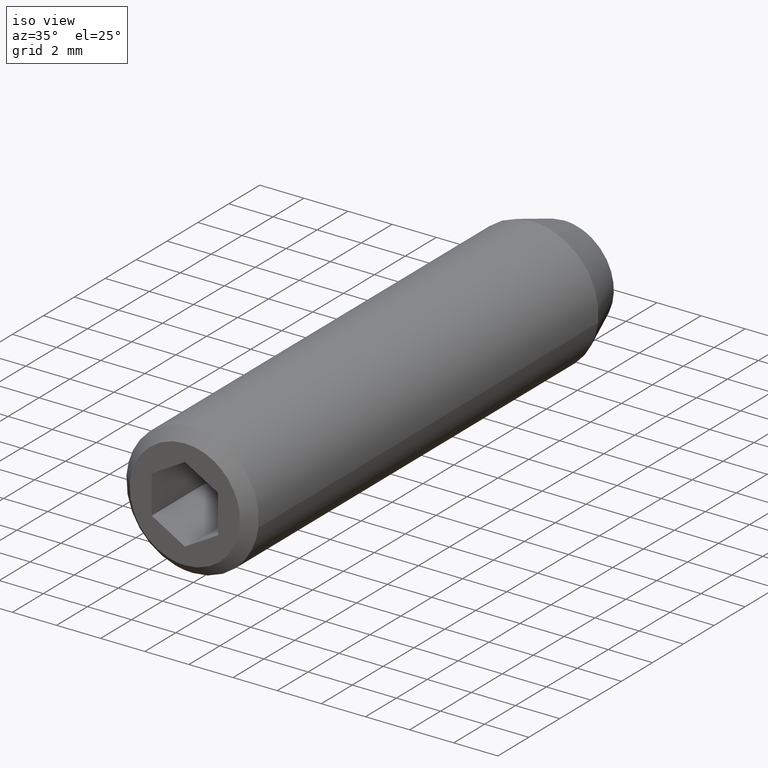
[diagram: clean part render]
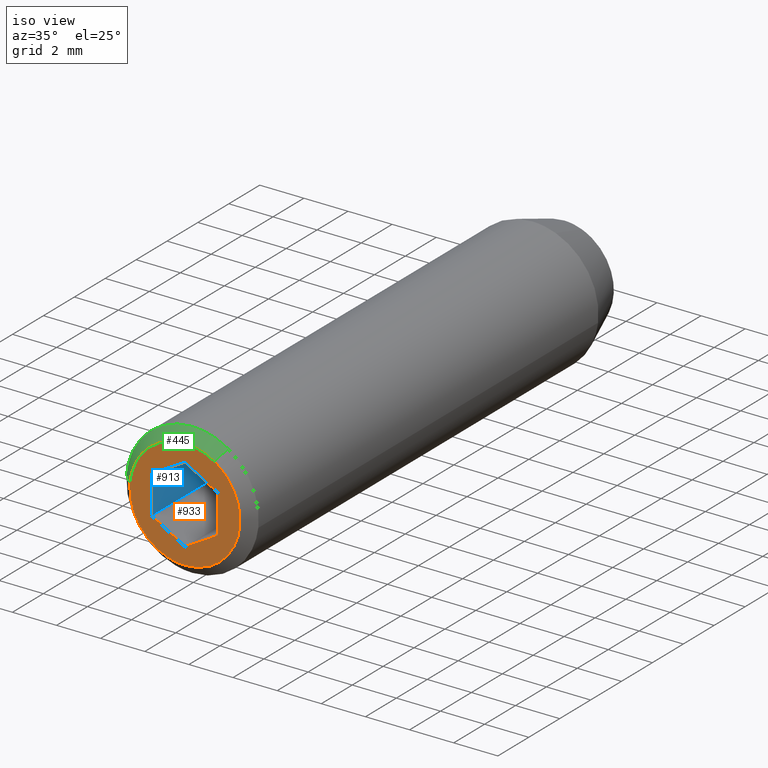
[diagram: same view with three faces highlighted in distinct colors, each labeled with its STEP entity id]
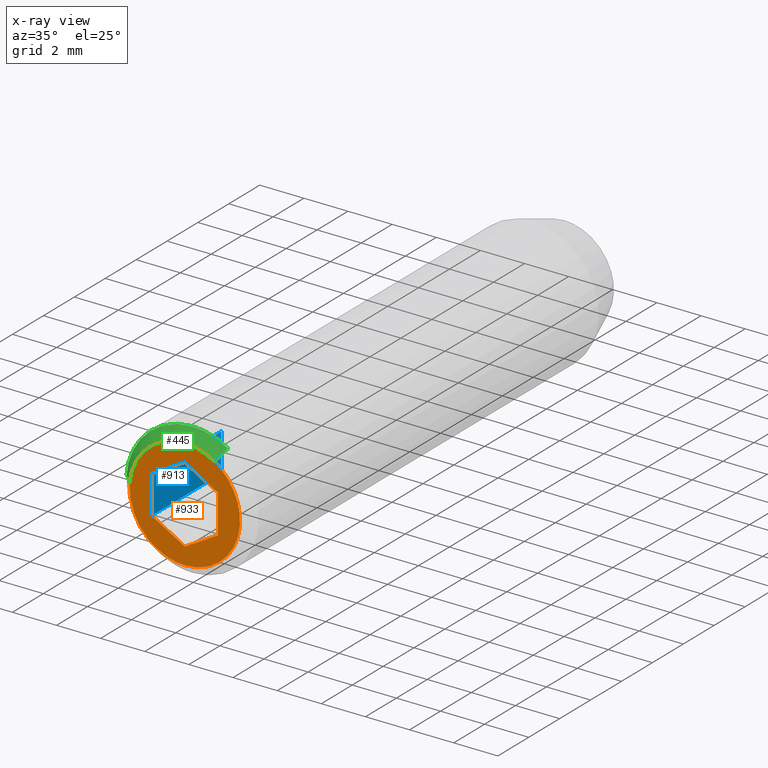
[diagram: x-ray of the same camera — body ghosted, the three highlighted faces saturated]
A machine part, iso view with three faces highlighted in distinct colors.
The next image is the same camera in x-ray (body ghosted, the three faces saturated) — at least one of them is partly hidden behind the body in this view.
Their STEP definitions:

[orange] entity #933 — the highlighted face is a freeform B-spline surface patch.
#271=CARTESIAN_POINT('',(1.344626983622767,-24.549999999999550,2.107600122156899));
#272=VERTEX_POINT('',#271);
#278=CARTESIAN_POINT('',(0.0,-24.550000000000001,-2.500000000000001));
#279=VERTEX_POINT('',#278);
#280=CARTESIAN_POINT('',(0.0,-24.550000000000001,-2.500000000000001));
#281=CARTESIAN_POINT('',(2.500000000000000,-24.549999999999997,-2.500000000000001));
#282=CARTESIAN_POINT('',(2.500000000000000,-24.550000000000001,-6.765950E-016));
#283=CARTESIAN_POINT('',(2.500000000000001,-24.549999999999997,1.370484140025952));
#284=CARTESIAN_POINT('',(1.344626983622767,-24.549999999999553,2.107600122156898));
#292=(BOUNDED_CURVE()B_SPLINE_CURVE(2,(#280,#281,#282,#283,#284),.UNSPECIFIED.,.F.,.U.)B_SPLINE_CURVE_WITH_KNOTS((3,2,3),(0.0,0.250000000000000,0.407950112626553),.UNSPECIFIED.)CURVE()GEOMETRIC_REPRESENTATION_ITEM()RATIONAL_B_SPLINE_CURVE((1.0,0.707106781186548,1.0,0.814949932403446,0.863729296954308))REPRESENTATION_ITEM(''));
#293=EDGE_CURVE('',#279,#272,#292,.T.);
#295=CARTESIAN_POINT('',(-2.492293334333787,-24.549999999997588,0.196147739338082));
#296=VERTEX_POINT('',#295);
#297=CARTESIAN_POINT('',(-2.492293334333788,-24.549999999997581,0.196147739338082));
#298=CARTESIAN_POINT('',(-2.500000000000000,-24.549999999999994,0.098225267537538));
#299=CARTESIAN_POINT('',(-2.500000000000000,-24.550000000000001,-6.765950E-016));
#300=CARTESIAN_POINT('',(-2.500000000000000,-24.549999999999997,-2.500000000000001));
#301=CARTESIAN_POINT('',(0.0,-24.550000000000001,-2.500000000000001));
#309=(BOUNDED_CURVE()B_SPLINE_CURVE(2,(#297,#298,#299,#300,#301),.UNSPECIFIED.,.F.,.U.)B_SPLINE_CURVE_WITH_KNOTS((3,2,3),(0.736331300630252,0.750000000000000,1.0),.UNSPECIFIED.)CURVE()GEOMETRIC_REPRESENTATION_ITEM()RATIONAL_B_SPLINE_CURVE((0.969723356166568,0.983986122578405,1.0,0.707106781186548,1.0))REPRESENTATION_ITEM(''));
#310=EDGE_CURVE('',#296,#279,#309,.T.);
#414=CARTESIAN_POINT('',(0.0,-24.550000000000001,2.499999999999999));
#415=VERTEX_POINT('',#414);
#416=CARTESIAN_POINT('',(0.0,-24.550000000000001,2.499999999999999));
#417=CARTESIAN_POINT('',(-2.310976229111517,-24.549999999999997,2.499999999999999));
#418=CARTESIAN_POINT('',(-2.492293334333787,-24.549999999997581,0.196147739338082));
#426=(BOUNDED_CURVE()B_SPLINE_CURVE(2,(#416,#417,#418),.UNSPECIFIED.,.F.,.U.)B_SPLINE_CURVE_WITH_KNOTS((3,3),(0.500000000000000,0.736331300630253),.UNSPECIFIED.)CURVE()GEOMETRIC_REPRESENTATION_ITEM()RATIONAL_B_SPLINE_CURVE((1.0,0.723120658608143,0.969723356166568))REPRESENTATION_ITEM(''));
#427=EDGE_CURVE('',#415,#296,#426,.T.);
#429=CARTESIAN_POINT('',(1.344626983622768,-24.549999999999550,2.107600122156899));
#430=CARTESIAN_POINT('',(0.729570138457195,-24.549999999999997,2.499999999999999));
#431=CARTESIAN_POINT('',(0.0,-24.550000000000001,2.499999999999999));
#439=(BOUNDED_CURVE()B_SPLINE_CURVE(2,(#429,#430,#431),.UNSPECIFIED.,.F.,.U.)B_SPLINE_CURVE_WITH_KNOTS((3,3),(0.407950112626553,0.500000000000000),.UNSPECIFIED.)CURVE()GEOMETRIC_REPRESENTATION_ITEM()RATIONAL_B_SPLINE_CURVE((0.863729296954308,0.892156848783102,1.0))REPRESENTATION_ITEM(''));
#440=EDGE_CURVE('',#272,#415,#439,.T.);
#787=CARTESIAN_POINT('',(1.084202E-016,-24.550000000000001,1.732051000000000));
#788=VERTEX_POINT('',#787);
#789=CARTESIAN_POINT('',(-1.500000000000000,-24.550000000000001,0.866025000000000));
#790=VERTEX_POINT('',#789);
#791=CARTESIAN_POINT('',(1.084202E-016,-24.550000000000001,1.732051000000000));
#792=CARTESIAN_POINT('',(-1.500000000000000,-24.550000000000001,0.866025000000000));
#793=QUASI_UNIFORM_CURVE('',1,(#791,#792),.UNSPECIFIED.,.F.,.U.);
#794=EDGE_CURVE('',#788,#790,#793,.T.);
#815=CARTESIAN_POINT('',(1.500000000000000,-24.550000000000001,0.866025000000000));
#816=VERTEX_POINT('',#815);
#817=CARTESIAN_POINT('',(1.500000000000000,-24.550000000000001,0.866025000000000));
#818=CARTESIAN_POINT('',(1.084202E-016,-24.550000000000001,1.732051000000000));
#819=QUASI_UNIFORM_CURVE('',1,(#817,#818),.UNSPECIFIED.,.F.,.U.);
#820=EDGE_CURVE('',#816,#788,#819,.T.);
#837=CARTESIAN_POINT('',(1.500000000000000,-24.550000000000001,-0.866025000000000));
#838=VERTEX_POINT('',#837);
#839=CARTESIAN_POINT('',(1.500000000000000,-24.550000000000001,-0.866025000000000));
#840=CARTESIAN_POINT('',(1.500000000000000,-24.550000000000001,0.866025000000000));
#841=QUASI_UNIFORM_CURVE('',1,(#839,#840),.UNSPECIFIED.,.F.,.U.);
#842=EDGE_CURVE('',#838,#816,#841,.T.);
#859=CARTESIAN_POINT('',(0.0,-24.550000000000001,-1.732051000000000));
#860=VERTEX_POINT('',#859);
#861=CARTESIAN_POINT('',(0.0,-24.550000000000001,-1.732051000000000));
#862=CARTESIAN_POINT('',(1.500000000000000,-24.550000000000001,-0.866025000000000));
#863=QUASI_UNIFORM_CURVE('',1,(#861,#862),.UNSPECIFIED.,.F.,.U.);
#864=EDGE_CURVE('',#860,#838,#863,.T.);
#881=CARTESIAN_POINT('',(-1.500000000000000,-24.550000000000001,-0.866025000000000));
#882=VERTEX_POINT('',#881);
#883=CARTESIAN_POINT('',(-1.500000000000000,-24.550000000000001,-0.866025000000000));
#884=CARTESIAN_POINT('',(0.0,-24.550000000000001,-1.732051000000000));
#885=QUASI_UNIFORM_CURVE('',1,(#883,#884),.UNSPECIFIED.,.F.,.U.);
#886=EDGE_CURVE('',#882,#860,#885,.T.);
#903=CARTESIAN_POINT('',(-1.500000000000000,-24.550000000000001,0.866025000000000));
#904=CARTESIAN_POINT('',(-1.500000000000000,-24.550000000000001,-0.866025000000000));
#905=QUASI_UNIFORM_CURVE('',1,(#903,#904),.UNSPECIFIED.,.F.,.U.);
#906=EDGE_CURVE('',#790,#882,#905,.T.);
#914=CARTESIAN_POINT('',(-2.748977485609766,-24.550000000000001,2.749749990309029));
#915=CARTESIAN_POINT('',(-2.748977485609766,-24.550000000000001,-2.749750124419482));
#916=CARTESIAN_POINT('',(2.748789507461305,-24.550000000000001,2.749749990309029));
#917=CARTESIAN_POINT('',(2.748789507461305,-24.550000000000001,-2.749750124419482));
#918=B_SPLINE_SURFACE_WITH_KNOTS('',1,1,((#914,#916),(#915,#917)),.UNSPECIFIED.,.F.,.F.,.U.,(2,2),(2,2),(0.0,5.499500114728511),(0.0,5.497766993071071),.UNSPECIFIED.);
#919=ORIENTED_EDGE('',*,*,#293,.T.);
#920=ORIENTED_EDGE('',*,*,#440,.T.);
#921=ORIENTED_EDGE('',*,*,#427,.T.);
#922=ORIENTED_EDGE('',*,*,#310,.T.);
#923=EDGE_LOOP('',(#919,#920,#921,#922));
#924=FACE_OUTER_BOUND('',#923,.T.);
#925=ORIENTED_EDGE('',*,*,#906,.F.);
#926=ORIENTED_EDGE('',*,*,#794,.F.);
#927=ORIENTED_EDGE('',*,*,#820,.F.);
#928=ORIENTED_EDGE('',*,*,#842,.F.);
#929=ORIENTED_EDGE('',*,*,#864,.F.);
#930=ORIENTED_EDGE('',*,*,#886,.F.);
#931=EDGE_LOOP('',(#925,#926,#927,#928,#929,#930));
#932=FACE_BOUND('',#931,.T.);
#933=ADVANCED_FACE('',(#924,#932),#918,.T.);

[blue] entity #913 — the highlighted face is a freeform B-spline surface patch.
#737=CARTESIAN_POINT('',(-1.500000000000000,-20.050000000000001,0.866025000000000));
#738=VERTEX_POINT('',#737);
#739=CARTESIAN_POINT('',(-1.500000000000000,-20.050000000000001,-0.866025000000000));
#740=VERTEX_POINT('',#739);
#741=CARTESIAN_POINT('',(-1.500000000000000,-20.050000000000001,0.866025000000000));
#742=CARTESIAN_POINT('',(-1.500000000000000,-20.050000000000001,-0.866025000000000));
#743=QUASI_UNIFORM_CURVE('',1,(#741,#742),.UNSPECIFIED.,.F.,.U.);
#744=EDGE_CURVE('',#738,#740,#743,.T.);
#789=CARTESIAN_POINT('',(-1.500000000000000,-24.550000000000001,0.866025000000000));
#790=VERTEX_POINT('',#789);
#796=CARTESIAN_POINT('',(-1.500000000000000,-20.050000000000001,0.866025000000000));
#797=CARTESIAN_POINT('',(-1.500000000000000,-24.550000000000001,0.866025000000000));
#798=QUASI_UNIFORM_CURVE('',1,(#796,#797),.UNSPECIFIED.,.F.,.U.);
#799=EDGE_CURVE('',#738,#790,#798,.T.);
#881=CARTESIAN_POINT('',(-1.500000000000000,-24.550000000000001,-0.866025000000000));
#882=VERTEX_POINT('',#881);
#890=CARTESIAN_POINT('',(-1.500000000000000,-20.050000000000001,-0.866025000000000));
#891=CARTESIAN_POINT('',(-1.500000000000000,-24.550000000000001,-0.866025000000000));
#892=QUASI_UNIFORM_CURVE('',1,(#890,#891),.UNSPECIFIED.,.F.,.U.);
#893=EDGE_CURVE('',#740,#882,#892,.T.);
#898=CARTESIAN_POINT('',(-1.500000000000000,-24.774774220819619,-0.952540855436359));
#899=CARTESIAN_POINT('',(-1.500000000000000,-24.774774220819619,0.952540808979158));
#900=CARTESIAN_POINT('',(-1.500000000000000,-19.825224250321241,-0.952540855436359));
#901=CARTESIAN_POINT('',(-1.500000000000000,-19.825224250321241,0.952540808979158));
#902=B_SPLINE_SURFACE_WITH_KNOTS('',1,1,((#898,#900),(#899,#901)),.UNSPECIFIED.,.F.,.F.,.U.,(2,2),(2,2),(0.0,1.905081664415518),(0.0,4.949549970498385),.UNSPECIFIED.);
#903=CARTESIAN_POINT('',(-1.500000000000000,-24.550000000000001,0.866025000000000));
#904=CARTESIAN_POINT('',(-1.500000000000000,-24.550000000000001,-0.866025000000000));
#905=QUASI_UNIFORM_CURVE('',1,(#903,#904),.UNSPECIFIED.,.F.,.U.);
#906=EDGE_CURVE('',#790,#882,#905,.T.);
#907=ORIENTED_EDGE('',*,*,#906,.T.);
#908=ORIENTED_EDGE('',*,*,#893,.F.);
#909=ORIENTED_EDGE('',*,*,#744,.F.);
#910=ORIENTED_EDGE('',*,*,#799,.T.);
#911=EDGE_LOOP('',(#907,#908,#909,#910));
#912=FACE_OUTER_BOUND('',#911,.T.);
#913=ADVANCED_FACE('',(#912),#902,.F.);

[green] entity #445 — the highlighted face is a freeform B-spline surface patch.
#254=CARTESIAN_POINT('',(1.613552380351205,-24.049999999999251,2.529120146586055));
#255=VERTEX_POINT('',#254);
#271=CARTESIAN_POINT('',(1.344626983622767,-24.549999999999550,2.107600122156899));
#272=VERTEX_POINT('',#271);
#273=CARTESIAN_POINT('',(1.344626983622767,-24.549999999999550,2.107600122156899));
#274=CARTESIAN_POINT('',(1.613552380351205,-24.049999999999251,2.529120146586055));
#275=QUASI_UNIFORM_CURVE('',1,(#273,#274),.UNSPECIFIED.,.F.,.U.);
#276=EDGE_CURVE('',#272,#255,#275,.T.);
#295=CARTESIAN_POINT('',(-2.492293334333787,-24.549999999997588,0.196147739338082));
#296=VERTEX_POINT('',#295);
#312=CARTESIAN_POINT('',(-2.990752001202611,-24.049999999991918,0.235377287245564));
#313=VERTEX_POINT('',#312);
#314=CARTESIAN_POINT('',(-2.492293334333787,-24.549999999997588,0.196147739338082));
#315=CARTESIAN_POINT('',(-2.990752001202611,-24.049999999991918,0.235377287245564));
#316=QUASI_UNIFORM_CURVE('',1,(#314,#315),.UNSPECIFIED.,.F.,.U.);
#317=EDGE_CURVE('',#296,#313,#316,.T.);
#367=CARTESIAN_POINT('',(-2.479831867661150,-24.562500000000000,0.195167000623015));
#368=CARTESIAN_POINT('',(-2.284664867038134,-24.562500000000007,2.674998868284166));
#369=CARTESIAN_POINT('',(0.195167000623015,-24.562500000000000,2.479831867661150));
#370=CARTESIAN_POINT('',(0.814319478020442,-24.562500000000007,2.431103510905281));
#371=CARTESIAN_POINT('',(1.337903848697429,-24.562499999999996,2.097062121550188));
#372=CARTESIAN_POINT('',(-3.003525004537846,-24.037187500000002,0.236382544347549));
#373=CARTESIAN_POINT('',(-2.767142460190296,-24.037187499999995,3.239907548885395));
#374=CARTESIAN_POINT('',(0.236382544347550,-24.037187500000002,3.003525004537845));
#375=CARTESIAN_POINT('',(0.986288201959185,-24.037187499999995,2.944506149326371));
#376=CARTESIAN_POINT('',(1.620443593629644,-24.037187499999987,2.539921597219278));
#384=(BOUNDED_SURFACE()B_SPLINE_SURFACE(2,1,((#367,#372),(#368,#373),(#369,#374),(#370,#375),(#371,#376)),.UNSPECIFIED.,.F.,.F.,.U.)B_SPLINE_SURFACE_WITH_KNOTS((3,2,3),(2,2),(0.0,4.991791193548773,6.589164375484380),(0.0,1.0),.UNSPECIFIED.)GEOMETRIC_REPRESENTATION_ITEM()RATIONAL_B_SPLINE_SURFACE(((1.0,1.0),(0.707106781186548,0.707106781186548),(1.0,1.0),(0.906274169979695,0.906274169979695),(0.872532871172386,0.872532871172386)))REPRESENTATION_ITEM('')SURFACE());
#385=CARTESIAN_POINT('',(0.0,-24.050000000000001,2.999999999999999));
#386=VERTEX_POINT('',#385);
#387=CARTESIAN_POINT('',(1.613552380351205,-24.049999999999251,2.529120146586055));
#388=CARTESIAN_POINT('',(0.875484166153485,-24.050000000000001,2.999999999999999));
#389=CARTESIAN_POINT('',(0.0,-24.050000000000001,2.999999999999999));
#397=(BOUNDED_CURVE()B_SPLINE_CURVE(2,(#387,#388,#389),.UNSPECIFIED.,.F.,.U.)B_SPLINE_CURVE_WITH_KNOTS((3,3),(0.407950112626098,0.500000000000000),.UNSPECIFIED.)CURVE()GEOMETRIC_REPRESENTATION_ITEM()RATIONAL_B_SPLINE_CURVE((0.863729296954027,0.892156848782568,1.0))REPRESENTATION_ITEM(''));
#398=EDGE_CURVE('',#255,#386,#397,.T.);
#399=ORIENTED_EDGE('',*,*,#398,.T.);
#400=CARTESIAN_POINT('',(0.0,-24.050000000000001,2.999999999999999));
#401=CARTESIAN_POINT('',(-2.773171474860424,-24.049999999999997,2.999999999999999));
#402=CARTESIAN_POINT('',(-2.990752001202611,-24.049999999991915,0.235377287245564));
#410=(BOUNDED_CURVE()B_SPLINE_CURVE(2,(#400,#401,#402),.UNSPECIFIED.,.F.,.U.)B_SPLINE_CURVE_WITH_KNOTS((3,3),(0.500000000000000,0.736331300625729),.UNSPECIFIED.)CURVE()GEOMETRIC_REPRESENTATION_ITEM()RATIONAL_B_SPLINE_CURVE((1.0,0.723120658613442,0.969723356157129))REPRESENTATION_ITEM(''));
#411=EDGE_CURVE('',#386,#313,#410,.T.);
#412=ORIENTED_EDGE('',*,*,#411,.T.);
#413=ORIENTED_EDGE('',*,*,#317,.F.);
#414=CARTESIAN_POINT('',(0.0,-24.550000000000001,2.499999999999999));
#415=VERTEX_POINT('',#414);
#416=CARTESIAN_POINT('',(0.0,-24.550000000000001,2.499999999999999));
#417=CARTESIAN_POINT('',(-2.310976229111517,-24.549999999999997,2.499999999999999));
#418=CARTESIAN_POINT('',(-2.492293334333787,-24.549999999997581,0.196147739338082));
#426=(BOUNDED_CURVE()B_SPLINE_CURVE(2,(#416,#417,#418),.UNSPECIFIED.,.F.,.U.)B_SPLINE_CURVE_WITH_KNOTS((3,3),(0.500000000000000,0.736331300630253),.UNSPECIFIED.)CURVE()GEOMETRIC_REPRESENTATION_ITEM()RATIONAL_B_SPLINE_CURVE((1.0,0.723120658608143,0.969723356166568))REPRESENTATION_ITEM(''));
#427=EDGE_CURVE('',#415,#296,#426,.T.);
#428=ORIENTED_EDGE('',*,*,#427,.F.);
#429=CARTESIAN_POINT('',(1.344626983622768,-24.549999999999550,2.107600122156899));
#430=CARTESIAN_POINT('',(0.729570138457195,-24.549999999999997,2.499999999999999));
#431=CARTESIAN_POINT('',(0.0,-24.550000000000001,2.499999999999999));
#439=(BOUNDED_CURVE()B_SPLINE_CURVE(2,(#429,#430,#431),.UNSPECIFIED.,.F.,.U.)B_SPLINE_CURVE_WITH_KNOTS((3,3),(0.407950112626553,0.500000000000000),.UNSPECIFIED.)CURVE()GEOMETRIC_REPRESENTATION_ITEM()RATIONAL_B_SPLINE_CURVE((0.863729296954308,0.892156848783102,1.0))REPRESENTATION_ITEM(''));
#440=EDGE_CURVE('',#272,#415,#439,.T.);
#441=ORIENTED_EDGE('',*,*,#440,.F.);
#442=ORIENTED_EDGE('',*,*,#276,.T.);
#443=EDGE_LOOP('',(#399,#412,#413,#428,#441,#442));
#444=FACE_OUTER_BOUND('',#443,.T.);
#445=ADVANCED_FACE('',(#444),#384,.T.);